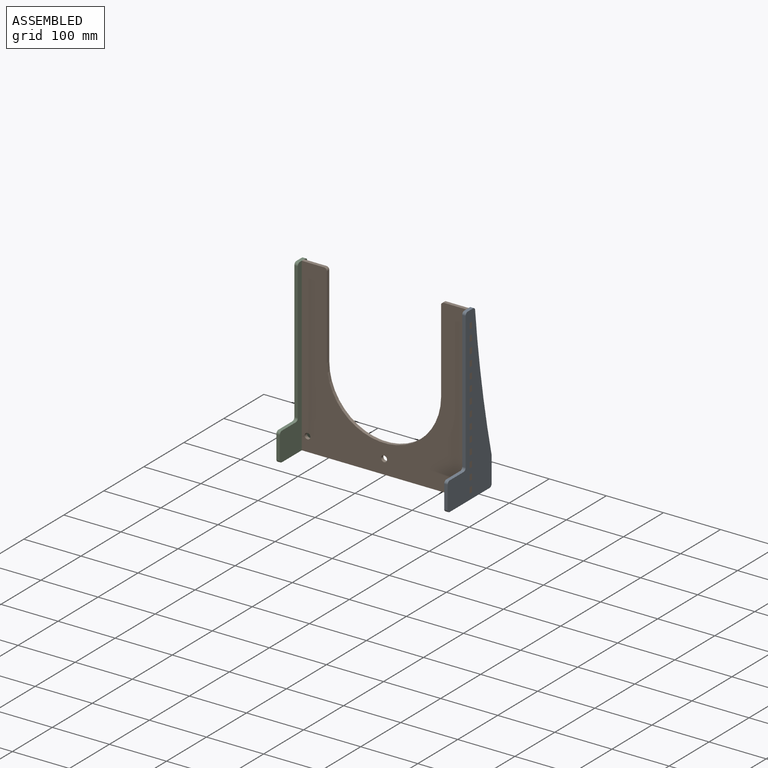
[diagram: assembled view]
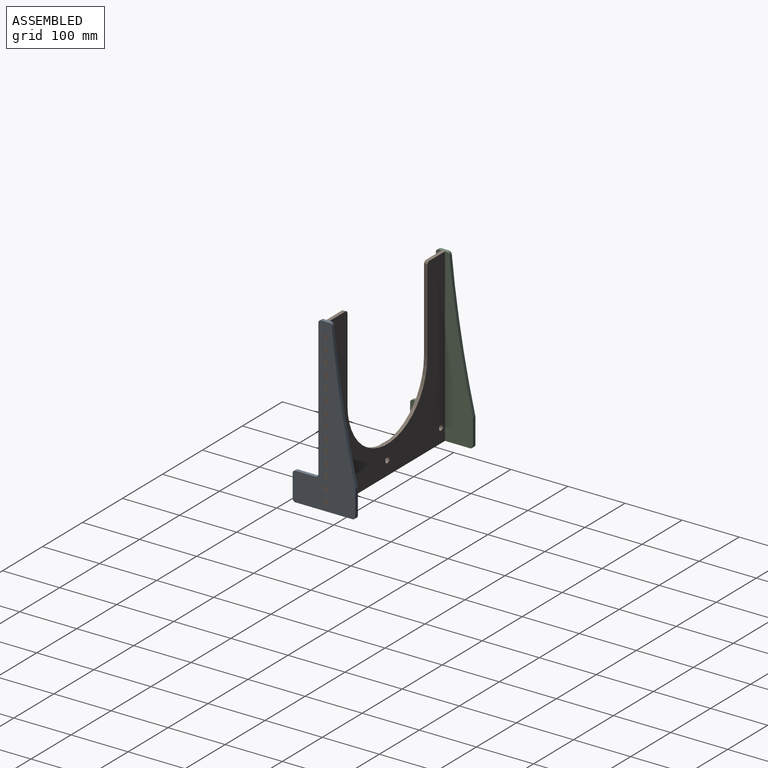
[diagram: assembled view, second angle]
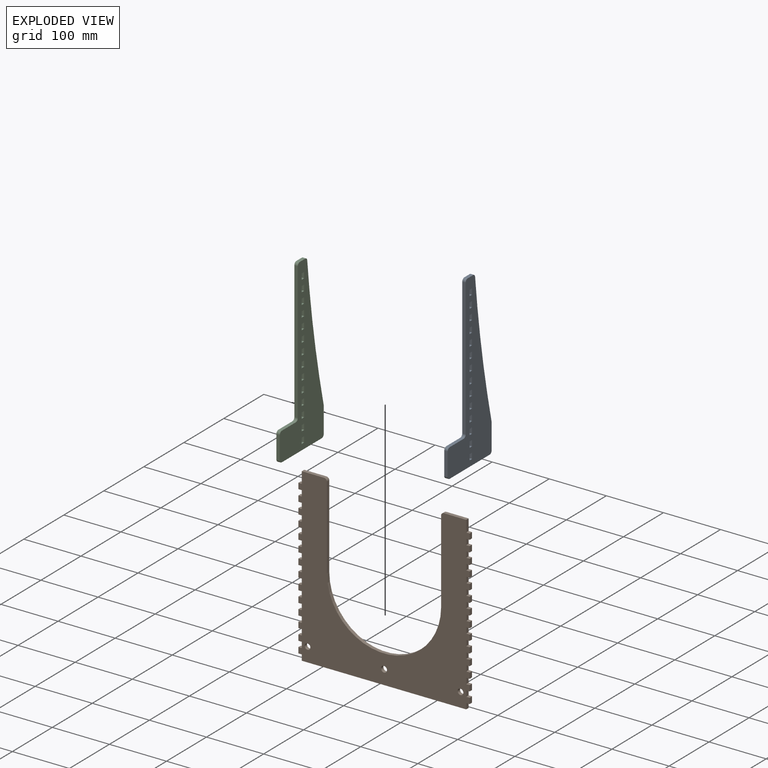
[diagram: exploded view]
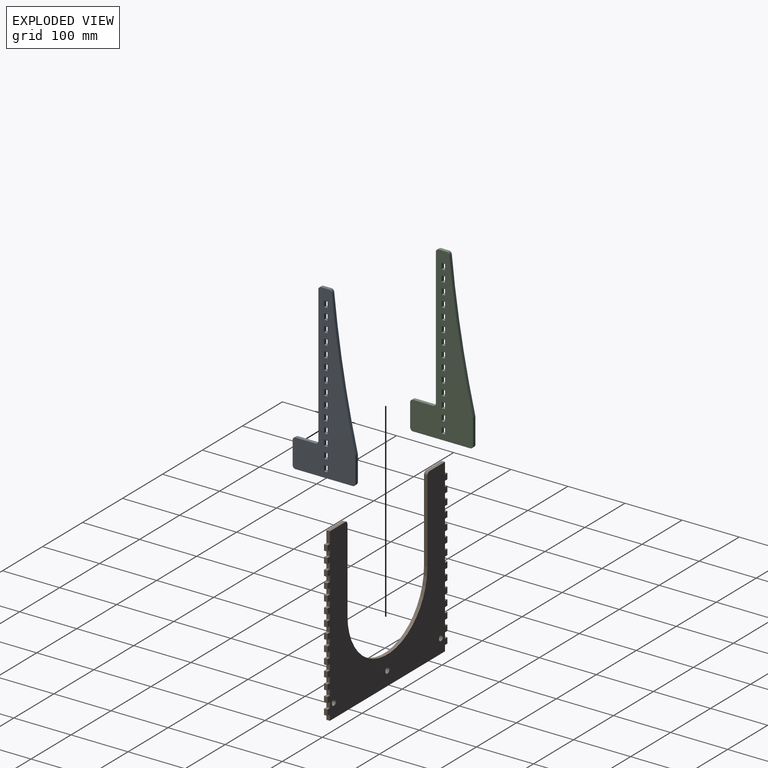
[diagram: exploded view, second angle]
ASSEMBLY  parts=3 mates=2
PART A: 72 faces, bbox 300x6x110 mm
  f0: plane 6x6mm, normal (1,0,0), area 36mm2, adj f1,f62,f63,f64
  f1: plane 10x6mm, normal (0,0,-1), area 60mm2, adj f0,f2,f63,f64
  f2: plane 6x6mm, normal (-1,0,0), area 36mm2, adj f1,f62,f63,f64
  f3: plane 6x6mm, normal (1,0,0), area 36mm2, adj f4,f48,f63,f64
  f4: plane 10x6mm, normal (0,0,-1), area 60mm2, adj f3,f5,f63,f64
  f5: plane 6x6mm, normal (-1,0,0), area 36mm2, adj f4,f48,f63,f64
  f6: plane 6x6mm, normal (1,0,0), area 36mm2, adj f7,f49,f63,f64
  f7: plane 10x6mm, normal (0,0,-1), area 60mm2, adj f6,f8,f63,f64
  f8: plane 6x6mm, normal (-1,0,0), area 36mm2, adj f7,f49,f63,f64
  f9: plane 10x6mm, normal (0,0,1), area 60mm2, adj f10,f50,f63,f64
  f10: plane 6x6mm, normal (1,0,0), area 36mm2, adj f9,f11,f63,f64
  f11: plane 10x6mm, normal (0,0,-1), area 60mm2, adj f10,f50,f63,f64
  f12: plane 10x6mm, normal (0,0,1), area 60mm2, adj f13,f51,f63,f64
  f13: plane 6x6mm, normal (1,0,0), area 36mm2, adj f12,f14,f63,f64
  f14: plane 10x6mm, normal (0,0,-1), area 60mm2, adj f13,f51,f63,f64
  f15: plane 10x6mm, normal (0,0,1), area 60mm2, adj f16,f52,f63,f64
  f16: plane 6x6mm, normal (1,0,0), area 36mm2, adj f15,f17,f63,f64
  f17: plane 10x6mm, normal (0,0,-1), area 60mm2, adj f16,f52,f63,f64
  f18: plane 10x6mm, normal (0,0,1), area 60mm2, adj f19,f53,f63,f64
  f19: plane 6x6mm, normal (1,0,0), area 36mm2, adj f18,f20,f63,f64
  f20: plane 10x6mm, normal (0,0,-1), area 60mm2, adj f19,f53,f63,f64
  f21: plane 10x6mm, normal (0,0,1), area 60mm2, adj f22,f54,f63,f64
  f22: plane 6x6mm, normal (1,0,0), area 36mm2, adj f21,f23,f63,f64
  f23: plane 10x6mm, normal (0,0,-1), area 60mm2, adj f22,f54,f63,f64
  f24: plane 10x6mm, normal (0,0,1), area 60mm2, adj f25,f55,f63,f64
  f25: plane 6x6mm, normal (1,0,0), area 36mm2, adj f24,f26,f63,f64
  f26: plane 10x6mm, normal (0,0,-1), area 60mm2, adj f25,f55,f63,f64
  f27: plane 10x6mm, normal (0,0,1), area 60mm2, adj f28,f56,f63,f64
  f28: plane 6x6mm, normal (1,0,0), area 36mm2, adj f27,f29,f63,f64
  f29: plane 10x6mm, normal (0,0,-1), area 60mm2, adj f28,f56,f63,f64
  f30: plane 10x6mm, normal (0,0,1), area 60mm2, adj f31,f57,f63,f64
  f31: plane 6x6mm, normal (1,0,0), area 36mm2, adj f30,f32,f63,f64
  f32: plane 10x6mm, normal (0,0,-1), area 60mm2, adj f31,f57,f63,f64
  f33: plane 10x6mm, normal (0,0,1), area 60mm2, adj f34,f58,f63,f64
  f34: plane 6x6mm, normal (1,0,0), area 36mm2, adj f33,f35,f63,f64
  f35: plane 10x6mm, normal (0,0,-1), area 60mm2, adj f34,f58,f63,f64
  f36: plane 240x6mm, normal (0,0,1), area 1440mm2, adj f63,f64,f65,f71
  f37: plane 13.67x6mm, normal (-1,0,0), area 82mm2, adj f63,f64,f65,f66
  f38: cylinder r=1854.03mm len=244.93mm, axis (0,1,0), area 1491.3mm2, adj f63,f64,f66,f67
  f39: plane 44.41x6mm, normal (0,0,-1), area 266.5mm2, adj f63,f64,f67,f68
  f40: plane 100x6mm, normal (1,0,0), area 600mm2, adj f63,f64,f68,f69
  f41: plane 40x6mm, normal (0,0,1), area 240mm2, adj f63,f64,f69,f70
  f42: plane 10x6mm, normal (0,0,1), area 60mm2, adj f43,f60,f63,f64
  f43: plane 6x6mm, normal (1,0,0), area 36mm2, adj f42,f44,f63,f64
  f44: plane 10x6mm, normal (0,0,-1), area 60mm2, adj f43,f60,f63,f64
  f45: plane 6x6mm, normal (1,0,0), area 36mm2, adj f46,f61,f63,f64
  f46: plane 10x6mm, normal (0,0,-1), area 60mm2, adj f45,f47,f63,f64
  f47: plane 6x6mm, normal (-1,0,0), area 36mm2, adj f46,f61,f63,f64
  f48: plane 10x6mm, normal (0,0,1), area 60mm2, adj f3,f5,f63,f64
  f49: plane 10x6mm, normal (0,0,1), area 60mm2, adj f6,f8,f63,f64
  f50: plane 6x6mm, normal (-1,0,0), area 36mm2, adj f9,f11,f63,f64
  f51: plane 6x6mm, normal (-1,0,0), area 36mm2, adj f12,f14,f63,f64
  f52: plane 6x6mm, normal (-1,0,0), area 36mm2, adj f15,f17,f63,f64
  f53: plane 6x6mm, normal (-1,0,0), area 36mm2, adj f18,f20,f63,f64
  f54: plane 6x6mm, normal (-1,0,0), area 36mm2, adj f21,f23,f63,f64
  f55: plane 6x6mm, normal (-1,0,0), area 36mm2, adj f24,f26,f63,f64
  f56: plane 6x6mm, normal (-1,0,0), area 36mm2, adj f27,f29,f63,f64
  f57: plane 6x6mm, normal (-1,0,0), area 36mm2, adj f30,f32,f63,f64
  f58: plane 6x6mm, normal (-1,0,0), area 36mm2, adj f33,f35,f63,f64
  f59: plane 35x6mm, normal (-1,0,0), area 210mm2, adj f63,f64,f70,f71
  f60: plane 6x6mm, normal (-1,0,0), area 36mm2, adj f42,f44,f63,f64
  f61: plane 10x6mm, normal (0,0,1), area 60mm2, adj f45,f47,f63,f64
  f62: plane 10x6mm, normal (0,0,1), area 60mm2, adj f0,f2,f63,f64
  f63: plane 300x110mm, normal (0,-1,0), area 14931.9mm2, adj f0,f1,f2,f3,f4,f5,f6,f7
  f64: plane 300x110mm, normal (0,1,0), area 14931.9mm2, adj f0,f1,f2,f3,f4,f5,f6,f7
  f65: cylinder r=5mm len=6mm, axis (0,-1,0), area 47.1mm2, adj f36,f37,f63,f64
  f66: cylinder r=5mm len=6mm, axis (0,1,0), area 44.1mm2, adj f37,f38,f63,f64
  f67: cylinder r=5mm len=6mm, axis (0,1,0), area 7mm2, adj f38,f39,f63,f64
  f68: cylinder r=5mm len=6mm, axis (0,1,0), area 47.1mm2, adj f39,f40,f63,f64
  f69: cylinder r=5mm len=6mm, axis (0,1,0), area 47.1mm2, adj f40,f41,f63,f64
  f70: cylinder r=5mm len=6mm, axis (0,1,0), area 47.1mm2, adj f41,f59,f63,f64
  f71: cylinder r=5mm len=6mm, axis (0,-1,0), area 47.1mm2, adj f36,f59,f63,f64
PART B: 127 faces, bbox 300x6x300 mm
  f0: plane 10x6mm, normal (1,0,0), area 60mm2, adj f1,f122,f123,f124
  f1: plane 6x6mm, normal (0,0,-1), area 36mm2, adj f0,f2,f123,f124
  f2: plane 10x6mm, normal (1,0,0), area 60mm2, adj f1,f3,f123,f124
  f3: plane 6x6mm, normal (0,0,1), area 36mm2, adj f2,f4,f123,f124
  f4: plane 10x6mm, normal (1,0,0), area 60mm2, adj f3,f5,f123,f124
  f5: plane 6x6mm, normal (0,0,-1), area 36mm2, adj f4,f6,f123,f124
  f6: plane 10x6mm, normal (1,0,0), area 60mm2, adj f5,f7,f123,f124
  f7: plane 6x6mm, normal (0,0,1), area 36mm2, adj f6,f8,f123,f124
  f8: plane 10x6mm, normal (1,0,0), area 60mm2, adj f7,f9,f123,f124
  f9: plane 6x6mm, normal (0,0,-1), area 36mm2, adj f8,f10,f123,f124
  f10: plane 10x6mm, normal (1,0,0), area 60mm2, adj f9,f11,f123,f124
  f11: plane 6x6mm, normal (0,0,1), area 36mm2, adj f10,f12,f123,f124
  f12: plane 20x6mm, normal (1,0,0), area 120mm2, adj f11,f13,f123,f124
  f13: plane 39x6mm, normal (0,0,1), area 234mm2, adj f12,f123,f124,f125
  f14: plane 145x6mm, normal (-1,0,0), area 870mm2, adj f15,f123,f124,f125
  f15: cylinder r=100mm len=200mm, axis (0,1,0), area 1885mm2, adj f14,f16,f123,f124
  f16: plane 145x6mm, normal (1,0,0), area 870mm2, adj f15,f123,f124,f126
  f17: plane 39x6mm, normal (0,0,1), area 234mm2, adj f18,f123,f124,f126
  f18: plane 20x6mm, normal (-1,0,0), area 120mm2, adj f17,f19,f123,f124
  f19: plane 6x6mm, normal (0,0,1), area 36mm2, adj f18,f20,f123,f124
  f20: plane 10x6mm, normal (-1,0,0), area 60mm2, adj f19,f21,f123,f124
  f21: plane 6x6mm, normal (0,0,-1), area 36mm2, adj f20,f22,f123,f124
  f22: plane 10x6mm, normal (-1,0,0), area 60mm2, adj f21,f23,f123,f124
  f23: plane 6x6mm, normal (0,0,1), area 36mm2, adj f22,f24,f123,f124
  f24: plane 10x6mm, normal (-1,0,0), area 60mm2, adj f23,f25,f123,f124
  f25: plane 6x6mm, normal (0,0,-1), area 36mm2, adj f24,f26,f123,f124
  f26: plane 10x6mm, normal (-1,0,0), area 60mm2, adj f25,f27,f123,f124
  f27: plane 6x6mm, normal (0,0,1), area 36mm2, adj f26,f28,f123,f124
  f28: plane 10x6mm, normal (-1,0,0), area 60mm2, adj f27,f29,f123,f124
  f29: plane 6x6mm, normal (0,0,-1), area 36mm2, adj f28,f30,f123,f124
  f30: plane 10x6mm, normal (-1,0,0), area 60mm2, adj f29,f31,f123,f124
  f31: plane 6x6mm, normal (0,0,1), area 36mm2, adj f30,f32,f123,f124
  f32: plane 10x6mm, normal (-1,0,0), area 60mm2, adj f31,f33,f123,f124
  f33: plane 6x6mm, normal (0,0,-1), area 36mm2, adj f32,f34,f123,f124
  f34: plane 10x6mm, normal (-1,0,0), area 60mm2, adj f33,f35,f123,f124
  f35: plane 6x6mm, normal (0,0,1), area 36mm2, adj f34,f36,f123,f124
  f36: plane 10x6mm, normal (-1,0,0), area 60mm2, adj f35,f37,f123,f124
  f37: plane 6x6mm, normal (0,0,-1), area 36mm2, adj f36,f38,f123,f124
  f38: plane 10x6mm, normal (-1,0,0), area 60mm2, adj f37,f39,f123,f124
  f39: plane 6x6mm, normal (0,0,1), area 36mm2, adj f38,f40,f123,f124
  f40: plane 10x6mm, normal (-1,0,0), area 60mm2, adj f39,f41,f123,f124
  f41: plane 6x6mm, normal (0,0,-1), area 36mm2, adj f40,f42,f123,f124
  f42: plane 10x6mm, normal (-1,0,0), area 60mm2, adj f41,f43,f123,f124
  f43: plane 6x6mm, normal (0,0,1), area 36mm2, adj f42,f44,f123,f124
  f44: plane 10x6mm, normal (-1,0,0), area 60mm2, adj f43,f45,f123,f124
  f45: plane 6x6mm, normal (0,0,-1), area 36mm2, adj f44,f46,f123,f124
  f46: plane 10x6mm, normal (-1,0,0), area 60mm2, adj f45,f47,f123,f124
  f47: plane 6x6mm, normal (0,0,1), area 36mm2, adj f46,f48,f123,f124
  f48: plane 10x6mm, normal (-1,0,0), area 60mm2, adj f47,f49,f123,f124
  f49: plane 6x6mm, normal (0,0,-1), area 36mm2, adj f48,f50,f123,f124
  f50: plane 10x6mm, normal (-1,0,0), area 60mm2, adj f49,f51,f123,f124
  f51: plane 6x6mm, normal (0,0,1), area 36mm2, adj f50,f52,f123,f124
  f52: plane 10x6mm, normal (-1,0,0), area 60mm2, adj f51,f53,f123,f124
  f53: plane 6x6mm, normal (0,0,-1), area 36mm2, adj f52,f54,f123,f124
  f54: plane 10x6mm, normal (-1,0,0), area 60mm2, adj f53,f55,f123,f124
  f55: plane 6x6mm, normal (0,0,1), area 36mm2, adj f54,f56,f123,f124
  f56: plane 10x6mm, normal (-1,0,0), area 60mm2, adj f55,f57,f123,f124
  f57: plane 6x6mm, normal (0,0,-1), area 36mm2, adj f56,f58,f123,f124
  f58: plane 10x6mm, normal (-1,0,0), area 60mm2, adj f57,f59,f123,f124
  f59: plane 6x6mm, normal (0,0,1), area 36mm2, adj f58,f60,f123,f124
  f60: plane 10x6mm, normal (-1,0,0), area 60mm2, adj f59,f61,f123,f124
  f61: plane 6x6mm, normal (0,0,-1), area 36mm2, adj f60,f62,f123,f124
  f62: plane 10x6mm, normal (-1,0,0), area 60mm2, adj f61,f63,f123,f124
  f63: plane 6x6mm, normal (0,0,1), area 36mm2, adj f62,f64,f123,f124
  f64: plane 10x6mm, normal (-1,0,0), area 60mm2, adj f63,f65,f123,f124
  f65: plane 6x6mm, normal (0,0,-1), area 36mm2, adj f64,f66,f123,f124
  f66: plane 10x6mm, normal (-1,0,0), area 60mm2, adj f65,f67,f123,f124
  f67: plane 6x6mm, normal (0,0,1), area 36mm2, adj f66,f68,f123,f124
  f68: plane 10x6mm, normal (-1,0,0), area 60mm2, adj f67,f69,f123,f124
  f69: plane 6x6mm, normal (0,0,-1), area 36mm2, adj f68,f70,f123,f124
  f70: plane 10x6mm, normal (-1,0,0), area 60mm2, adj f69,f71,f123,f124
  f71: plane 6x6mm, normal (0,0,1), area 36mm2, adj f70,f72,f123,f124
  f72: plane 10x6mm, normal (-1,0,0), area 60mm2, adj f71,f73,f123,f124
  f73: plane 6x6mm, normal (0,0,-1), area 36mm2, adj f72,f74,f123,f124
  f74: plane 10x6mm, normal (-1,0,0), area 60mm2, adj f73,f75,f123,f124
  f75: plane 288x6mm, normal (0,0,-1), area 1728mm2, adj f74,f76,f123,f124
  f76: plane 10x6mm, normal (1,0,0), area 60mm2, adj f75,f77,f123,f124
  f77: plane 6x6mm, normal (0,0,-1), area 36mm2, adj f76,f78,f123,f124
  f78: plane 10x6mm, normal (1,0,0), area 60mm2, adj f77,f79,f123,f124
  f79: plane 6x6mm, normal (0,0,1), area 36mm2, adj f78,f80,f123,f124
  f80: plane 10x6mm, normal (1,0,0), area 60mm2, adj f79,f81,f123,f124
  f81: plane 6x6mm, normal (0,0,-1), area 36mm2, adj f80,f82,f123,f124
  f82: plane 10x6mm, normal (1,0,0), area 60mm2, adj f81,f83,f123,f124
  f83: plane 6x6mm, normal (0,0,1), area 36mm2, adj f82,f84,f123,f124
  f84: plane 10x6mm, normal (1,0,0), area 60mm2, adj f83,f85,f123,f124
  f85: plane 6x6mm, normal (0,0,-1), area 36mm2, adj f84,f86,f123,f124
  f86: plane 10x6mm, normal (1,0,0), area 60mm2, adj f85,f87,f123,f124
  f87: plane 6x6mm, normal (0,0,1), area 36mm2, adj f86,f88,f123,f124
  f88: plane 10x6mm, normal (1,0,0), area 60mm2, adj f87,f89,f123,f124
  f89: plane 6x6mm, normal (0,0,-1), area 36mm2, adj f88,f90,f123,f124
  f90: plane 10x6mm, normal (1,0,0), area 60mm2, adj f89,f91,f123,f124
  f91: plane 6x6mm, normal (0,0,1), area 36mm2, adj f90,f92,f123,f124
  f92: plane 10x6mm, normal (1,0,0), area 60mm2, adj f91,f93,f123,f124
  f93: plane 6x6mm, normal (0,0,-1), area 36mm2, adj f92,f94,f123,f124
  f94: plane 10x6mm, normal (1,0,0), area 60mm2, adj f93,f95,f123,f124
  f95: plane 6x6mm, normal (0,0,1), area 36mm2, adj f94,f96,f123,f124
  f96: plane 10x6mm, normal (1,0,0), area 60mm2, adj f95,f97,f123,f124
  f97: plane 6x6mm, normal (0,0,-1), area 36mm2, adj f96,f98,f123,f124
  f98: plane 10x6mm, normal (1,0,0), area 60mm2, adj f97,f99,f123,f124
  f99: plane 6x6mm, normal (0,0,1), area 36mm2, adj f98,f100,f123,f124
  f100: plane 10x6mm, normal (1,0,0), area 60mm2, adj f99,f101,f123,f124
  f101: plane 6x6mm, normal (0,0,-1), area 36mm2, adj f100,f102,f123,f124
  f102: plane 10x6mm, normal (1,0,0), area 60mm2, adj f101,f103,f123,f124
  f103: plane 6x6mm, normal (0,0,1), area 36mm2, adj f102,f104,f123,f124
  f104: plane 10x6mm, normal (1,0,0), area 60mm2, adj f103,f105,f123,f124
  f105: plane 6x6mm, normal (0,0,-1), area 36mm2, adj f104,f106,f123,f124
  f106: plane 10x6mm, normal (1,0,0), area 60mm2, adj f105,f107,f123,f124
  f107: plane 6x6mm, normal (0,0,1), area 36mm2, adj f106,f108,f123,f124
  f108: plane 10x6mm, normal (1,0,0), area 60mm2, adj f107,f109,f123,f124
  f109: plane 6x6mm, normal (0,0,-1), area 36mm2, adj f108,f110,f123,f124
  f110: plane 10x6mm, normal (1,0,0), area 60mm2, adj f109,f111,f123,f124
  f111: plane 6x6mm, normal (0,0,1), area 36mm2, adj f110,f112,f123,f124
  f112: plane 10x6mm, normal (1,0,0), area 60mm2, adj f111,f113,f123,f124
  f113: plane 6x6mm, normal (0,0,-1), area 36mm2, adj f112,f114,f123,f124
  f114: plane 10x6mm, normal (1,0,0), area 60mm2, adj f113,f115,f123,f124
  f115: plane 6x6mm, normal (0,0,1), area 36mm2, adj f114,f116,f123,f124
  f116: plane 10x6mm, normal (1,0,0), area 60mm2, adj f115,f117,f123,f124
  f117: plane 6x6mm, normal (0,0,-1), area 36mm2, adj f116,f118,f123,f124
  f118: plane 10x6mm, normal (1,0,0), area 60mm2, adj f117,f122,f123,f124
  f119: cylinder r=5mm len=10mm, axis (0,1,0), area 188.5mm2, adj f123,f124
  f120: cylinder r=5.25mm len=10.5mm, axis (0,1,0), area 197.9mm2, adj f123,f124
  f121: cylinder r=5mm len=10mm, axis (0,1,0), area 188.5mm2, adj f123,f124
  f122: plane 6x6mm, normal (0,0,1), area 36mm2, adj f0,f118,f123,f124
  f123: plane 300x300mm, normal (0,-1,0), area 42117.6mm2, adj f0,f1,f2,f3,f4,f5,f6,f7
  f124: plane 300x300mm, normal (0,1,0), area 42117.6mm2, adj f0,f1,f2,f3,f4,f5,f6,f7
  f125: cylinder r=5mm len=6mm, axis (0,-1,0), area 47.1mm2, adj f13,f14,f123,f124
  f126: cylinder r=5mm len=6mm, axis (0,1,0), area 47.1mm2, adj f16,f17,f123,f124
PART C: same geometry as A
PLACE A rot(axis=(0.58,0.58,-0.58),120deg) t=(65.5,-30.95,81.33)mm
PLACE B t=(-234.5,-14.95,-103.75)mm fixed
PLACE C rot(axis=(0.58,0.58,-0.58),120deg) t=(-228.5,-30.95,81.33)mm
MATE fastened C.f3 <-> B.f19  axis (0,0,-1) through (-231.5,-17.95,176.25)mm
MATE fastened B.f11 <-> A.f3  axis (0,0,1) through (62.5,-17.95,176.25)mm
